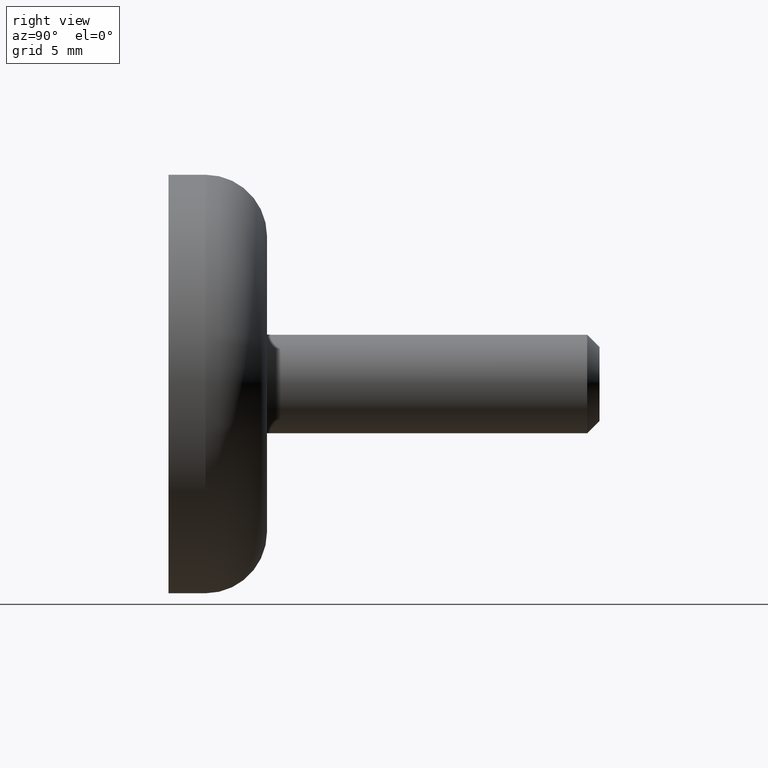
[diagram: clean part render]
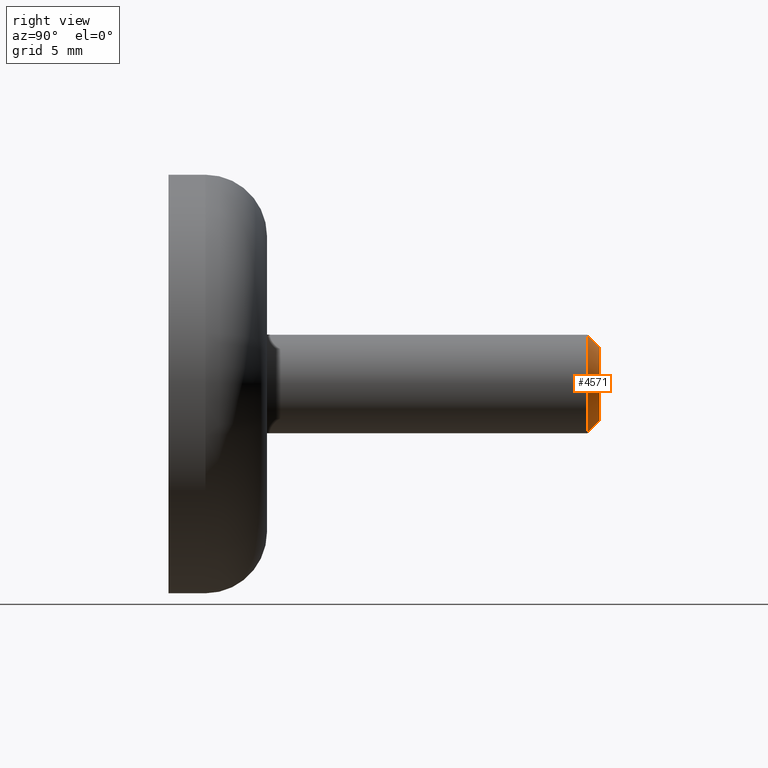
[diagram: same view with one face highlighted and labeled with its STEP entity id]
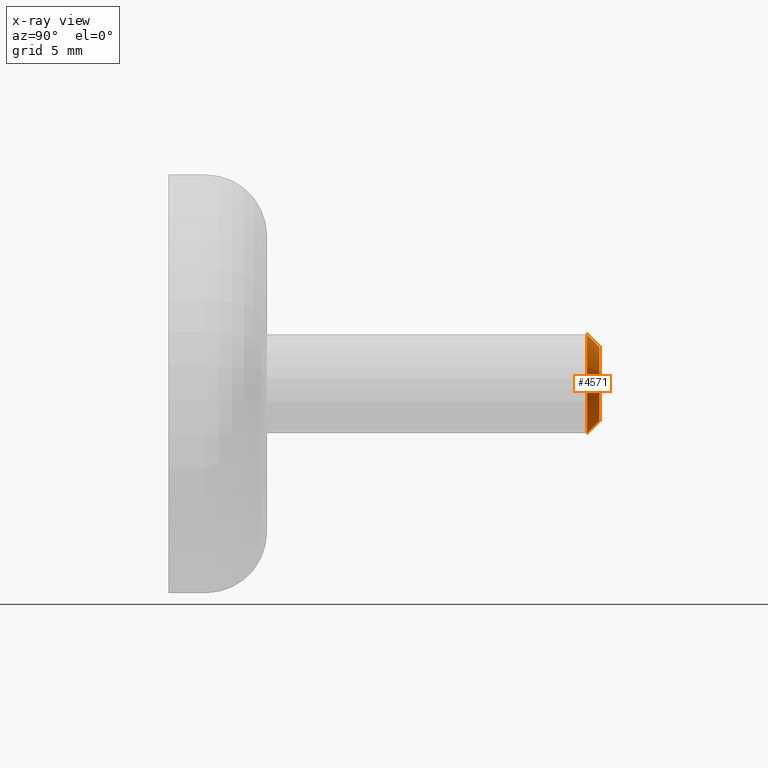
[diagram: x-ray of the same camera — body ghosted, the highlighted face saturated]
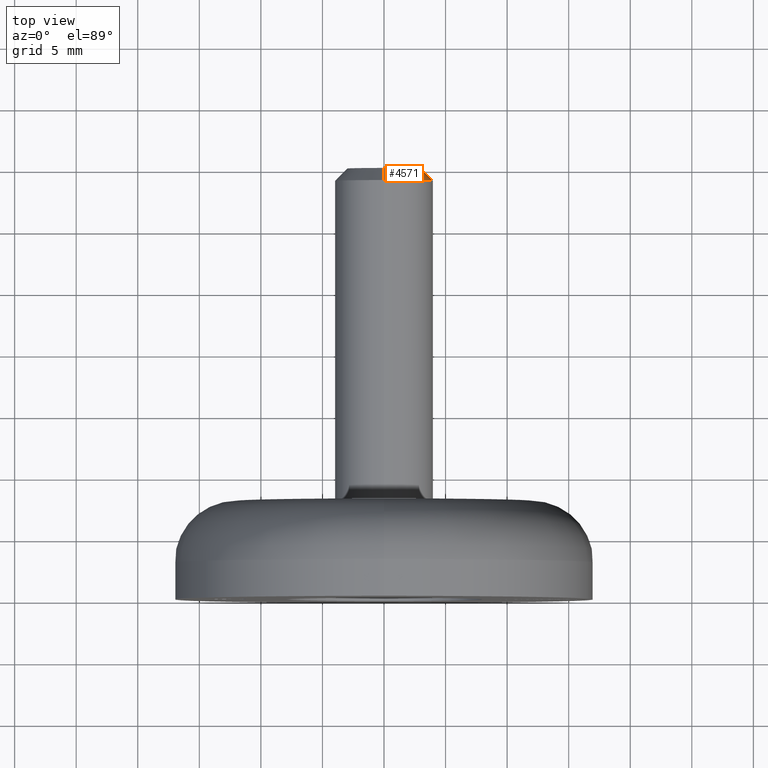
[diagram: same view with one face highlighted and labeled with its STEP entity id]
A machine part, right view. The second image highlights one B-rep face of the part: STEP entity #4571.
The next image is the same camera in x-ray: the body ghosted, the highlighted face saturated — about 0% of this face is hidden behind the body in this view.
A second angle (top view) of the same face is appended — the face is thin or edge-on in the first view.
In plain terms, the highlighted conical surface has half-angle 45 deg.
Its self-contained STEP definition (entity closure, byte-faithful):
#774 = CARTESIAN_POINT ( 'NONE',  ( 4.898587196589415787E-16, 34.00000000000000000, 4.000000000000001776 ) ) ;
#1054 = DIRECTION ( 'NONE',  ( 0.000000000000000000, 0.000000000000000000, 1.000000000000000000 ) ) ;
#1286 = CARTESIAN_POINT ( 'NONE',  ( 0.000000000000000000, 34.00000000000000000, -4.000000000000001776 ) ) ;
#1298 = CARTESIAN_POINT ( 'NONE',  ( 0.000000000000000000, 34.00000000000000000, 0.000000000000000000 ) ) ;
#1353 = EDGE_CURVE ( 'NONE', #14048, #5745, #15249, .T. ) ;
#1361 = DIRECTION ( 'NONE',  ( -0.000000000000000000, -1.000000000000000000, -0.000000000000000000 ) ) ;
#1867 = AXIS2_PLACEMENT_3D ( 'NONE', #9225, #11707, #1054 ) ;
#2347 = FACE_OUTER_BOUND ( 'NONE', #11159, .T. ) ;
#2686 = LINE ( 'NONE', #9782, #15409 ) ;
#2739 = ORIENTED_EDGE ( 'NONE', *, *, #2804, .F. ) ;
#2804 = EDGE_CURVE ( 'NONE', #14048, #14479, #5290, .T. ) ;
#3924 = VERTEX_POINT ( 'NONE', #1286 ) ;
#4350 = AXIS2_PLACEMENT_3D ( 'NONE', #1298, #12299, #10994 ) ;
#4571 = ADVANCED_FACE ( 'NONE', ( #2347 ), #15871, .T. ) ;
#5290 = CIRCLE ( 'NONE', #1867, 2.999999999999988898 ) ;
#5745 = VERTEX_POINT ( 'NONE', #774 ) ;
#6204 = CIRCLE ( 'NONE', #13105, 4.000000000000001776 ) ;
#6224 = EDGE_CURVE ( 'NONE', #3924, #5745, #6204, .T. ) ;
#6771 = ORIENTED_EDGE ( 'NONE', *, *, #14733, .F. ) ;
#7029 = CARTESIAN_POINT ( 'NONE',  ( 4.286263797015730678E-16, 35.00000000000000000, 2.999999999999988898 ) ) ;
#8742 = CARTESIAN_POINT ( 'NONE',  ( 0.000000000000000000, 34.00000000000000000, 0.000000000000000000 ) ) ;
#9225 = CARTESIAN_POINT ( 'NONE',  ( 0.000000000000000000, 35.00000000000000000, 0.000000000000000000 ) ) ;
#9782 = CARTESIAN_POINT ( 'NONE',  ( 0.000000000000000000, 34.00000000000000000, -4.000000000000001776 ) ) ;
#10994 = DIRECTION ( 'NONE',  ( 0.000000000000000000, 0.000000000000000000, -1.000000000000000000 ) ) ;
#11029 = DIRECTION ( 'NONE',  ( 8.659560562354987092E-17, -0.7071067811865431318, 0.7071067811865517916 ) ) ;
#11159 = EDGE_LOOP ( 'NONE', ( #2739, #13611, #13471, #6771 ) ) ;
#11707 = DIRECTION ( 'NONE',  ( 0.000000000000000000, 1.000000000000000000, 0.000000000000000000 ) ) ;
#11849 = CARTESIAN_POINT ( 'NONE',  ( 0.000000000000000000, 35.00000000000000000, -2.999999999999988898 ) ) ;
#12299 = DIRECTION ( 'NONE',  ( -0.000000000000000000, -1.000000000000000000, -0.000000000000000000 ) ) ;
#12690 = DIRECTION ( 'NONE',  ( 0.000000000000000000, 0.000000000000000000, 1.000000000000000000 ) ) ;
#13105 = AXIS2_PLACEMENT_3D ( 'NONE', #8742, #1361, #12690 ) ;
#13471 = ORIENTED_EDGE ( 'NONE', *, *, #6224, .F. ) ;
#13535 = VECTOR ( 'NONE', #11029, 1000.000000000000114 ) ;
#13611 = ORIENTED_EDGE ( 'NONE', *, *, #1353, .T. ) ;
#14048 = VERTEX_POINT ( 'NONE', #7029 ) ;
#14479 = VERTEX_POINT ( 'NONE', #11849 ) ;
#14602 = CARTESIAN_POINT ( 'NONE',  ( 4.898587196589415787E-16, 34.00000000000000000, 4.000000000000001776 ) ) ;
#14733 = EDGE_CURVE ( 'NONE', #14479, #3924, #2686, .T. ) ;
#15209 = DIRECTION ( 'NONE',  ( 0.000000000000000000, -0.7071067811865431318, -0.7071067811865517916 ) ) ;
#15249 = LINE ( 'NONE', #14602, #13535 ) ;
#15409 = VECTOR ( 'NONE', #15209, 1000.000000000000114 ) ;
#15871 = CONICAL_SURFACE ( 'NONE', #4350, 4.000000000000001776, 0.7853981633974543852 ) ;